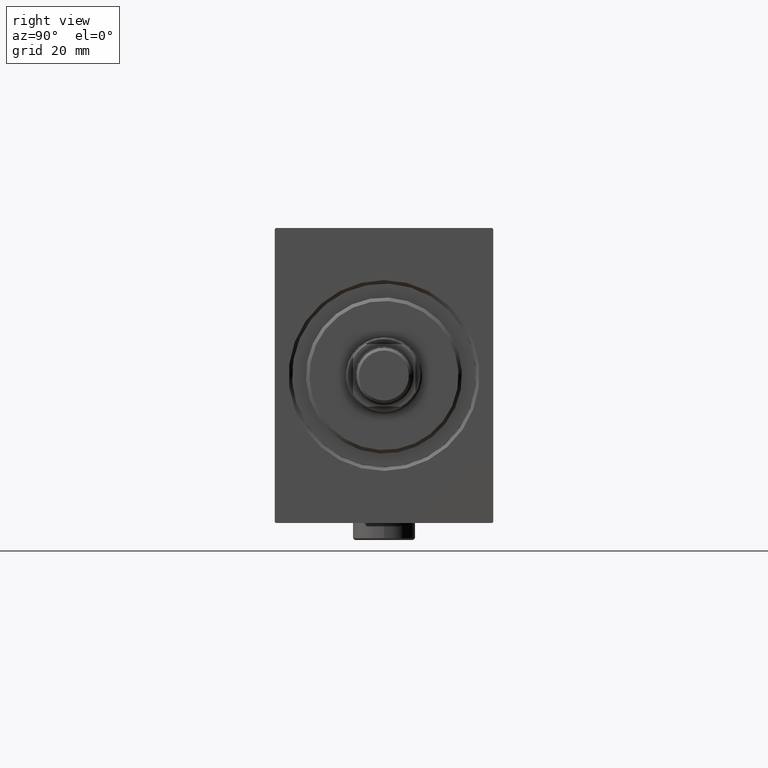
[diagram: clean part render]
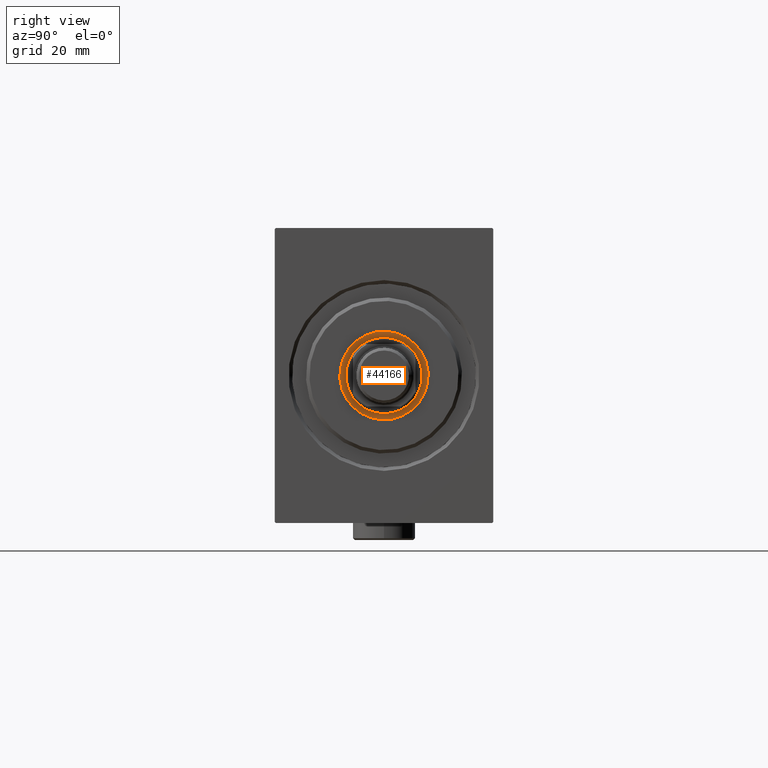
[diagram: same view with one face highlighted and labeled with its STEP entity id]
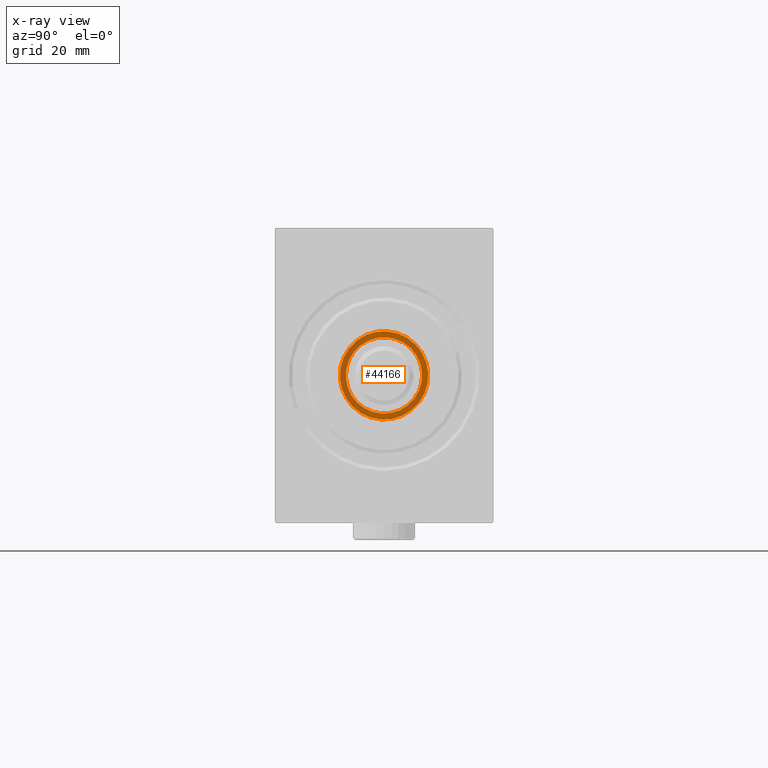
[diagram: x-ray of the same camera — body ghosted, the highlighted face saturated]
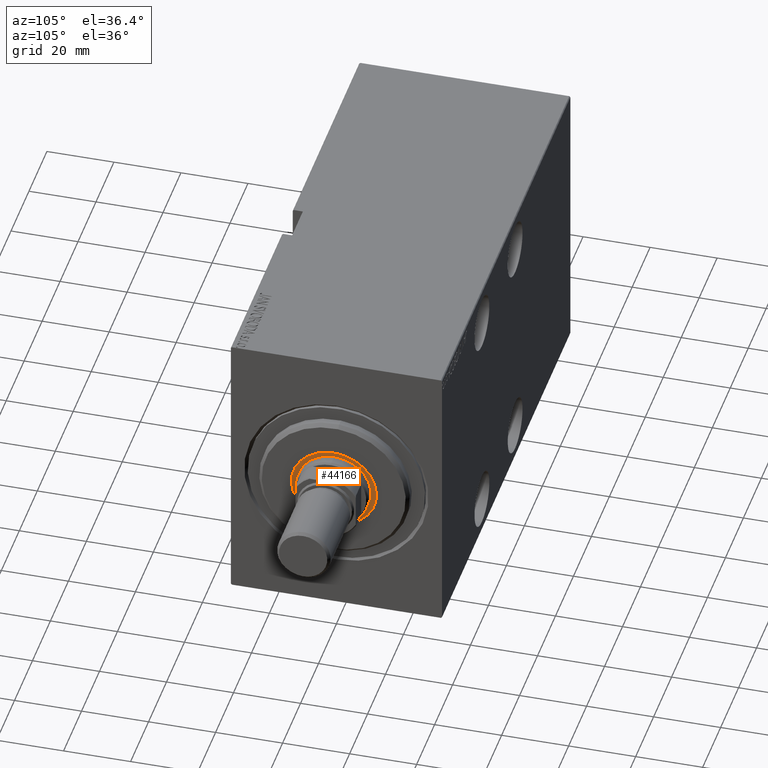
[diagram: same view with one face highlighted and labeled with its STEP entity id]
A machine part, right view. The second image highlights one B-rep face of the part: STEP entity #44166.
The next image is the same camera in x-ray: the body ghosted, the highlighted face saturated — about 0% of this face is hidden behind the body in this view.
A second angle (auxiliary view) of the same face is appended — the face is thin or edge-on in the first view.
In plain terms, the highlighted planar face has unit normal (1, -0, -0).
Its self-contained STEP definition (entity closure, byte-faithful):
#2743 = CARTESIAN_POINT ( 'NONE',  ( 2.500000000000000444, 1.347111479062088405E-15, 11.00000000000000000 ) ) ;
#2923 = DIRECTION ( 'NONE',  ( 1.000000000000000000, 0.000000000000000000, 0.000000000000000000 ) ) ;
#4122 = CARTESIAN_POINT ( 'NONE',  ( 2.500000000000000000, 0.000000000000000000, 0.000000000000000000 ) ) ;
#5245 = ORIENTED_EDGE ( 'NONE', *, *, #43018, .T. ) ;
#6421 = AXIS2_PLACEMENT_3D ( 'NONE', #9178, #43245, #39862 ) ;
#6913 = VERTEX_POINT ( 'NONE', #16115 ) ;
#7895 = FACE_OUTER_BOUND ( 'NONE', #10601, .T. ) ;
#7980 = AXIS2_PLACEMENT_3D ( 'NONE', #43280, #2923, #29179 ) ;
#9178 = CARTESIAN_POINT ( 'NONE',  ( 2.500000000000000000, 0.000000000000000000, 0.000000000000000000 ) ) ;
#10198 = DIRECTION ( 'NONE',  ( 0.000000000000000000, 0.000000000000000000, -1.000000000000000000 ) ) ;
#10601 = EDGE_LOOP ( 'NONE', ( #20263, #5245 ) ) ;
#11482 = PLANE ( 'NONE',  #25596 ) ;
#12975 = DIRECTION ( 'NONE',  ( 1.000000000000000000, 0.000000000000000000, 0.000000000000000000 ) ) ;
#13577 = CARTESIAN_POINT ( 'NONE',  ( 2.500000000000000000, 0.000000000000000000, 0.000000000000000000 ) ) ;
#15204 = ORIENTED_EDGE ( 'NONE', *, *, #33091, .F. ) ;
#16115 = CARTESIAN_POINT ( 'NONE',  ( 2.500000000000000000, 0.000000000000000000, -12.75000000000000000 ) ) ;
#16973 = AXIS2_PLACEMENT_3D ( 'NONE', #4122, #21160, #32141 ) ;
#17276 = CIRCLE ( 'NONE', #7980, 11.00000000000000000 ) ;
#18002 = EDGE_LOOP ( 'NONE', ( #15204, #35589 ) ) ;
#18326 = VERTEX_POINT ( 'NONE', #31242 ) ;
#19925 = DIRECTION ( 'NONE',  ( 0.000000000000000000, 0.000000000000000000, -1.000000000000000000 ) ) ;
#20263 = ORIENTED_EDGE ( 'NONE', *, *, #27622, .T. ) ;
#20743 = CARTESIAN_POINT ( 'NONE',  ( 2.500000000000000000, 1.561424668912875111E-15, 12.75000000000000000 ) ) ;
#21160 = DIRECTION ( 'NONE',  ( 1.000000000000000000, 0.000000000000000000, 0.000000000000000000 ) ) ;
#21799 = FACE_BOUND ( 'NONE', #18002, .T. ) ;
#23890 = DIRECTION ( 'NONE',  ( 1.000000000000000000, 0.000000000000000000, 0.000000000000000000 ) ) ;
#25596 = AXIS2_PLACEMENT_3D ( 'NONE', #13577, #23890, #10198 ) ;
#26879 = CARTESIAN_POINT ( 'NONE',  ( 2.500000000000000444, 0.000000000000000000, 0.000000000000000000 ) ) ;
#27388 = CIRCLE ( 'NONE', #33119, 11.00000000000000000 ) ;
#27622 = EDGE_CURVE ( 'NONE', #6913, #39385, #42942, .T. ) ;
#29179 = DIRECTION ( 'NONE',  ( 0.000000000000000000, 0.000000000000000000, -1.000000000000000000 ) ) ;
#29261 = VERTEX_POINT ( 'NONE', #2743 ) ;
#31242 = CARTESIAN_POINT ( 'NONE',  ( 2.500000000000000444, 0.000000000000000000, -11.00000000000000000 ) ) ;
#32141 = DIRECTION ( 'NONE',  ( 0.000000000000000000, 0.000000000000000000, -1.000000000000000000 ) ) ;
#33091 = EDGE_CURVE ( 'NONE', #18326, #29261, #17276, .T. ) ;
#33119 = AXIS2_PLACEMENT_3D ( 'NONE', #26879, #12975, #19925 ) ;
#35589 = ORIENTED_EDGE ( 'NONE', *, *, #35776, .F. ) ;
#35776 = EDGE_CURVE ( 'NONE', #29261, #18326, #27388, .T. ) ;
#38519 = CIRCLE ( 'NONE', #16973, 12.75000000000000000 ) ;
#39385 = VERTEX_POINT ( 'NONE', #20743 ) ;
#39862 = DIRECTION ( 'NONE',  ( 0.000000000000000000, 0.000000000000000000, -1.000000000000000000 ) ) ;
#42942 = CIRCLE ( 'NONE', #6421, 12.75000000000000000 ) ;
#43018 = EDGE_CURVE ( 'NONE', #39385, #6913, #38519, .T. ) ;
#43245 = DIRECTION ( 'NONE',  ( 1.000000000000000000, 0.000000000000000000, 0.000000000000000000 ) ) ;
#43280 = CARTESIAN_POINT ( 'NONE',  ( 2.500000000000000444, 0.000000000000000000, 0.000000000000000000 ) ) ;
#44166 = ADVANCED_FACE ( 'NONE', ( #21799, #7895 ), #11482, .T. ) ;